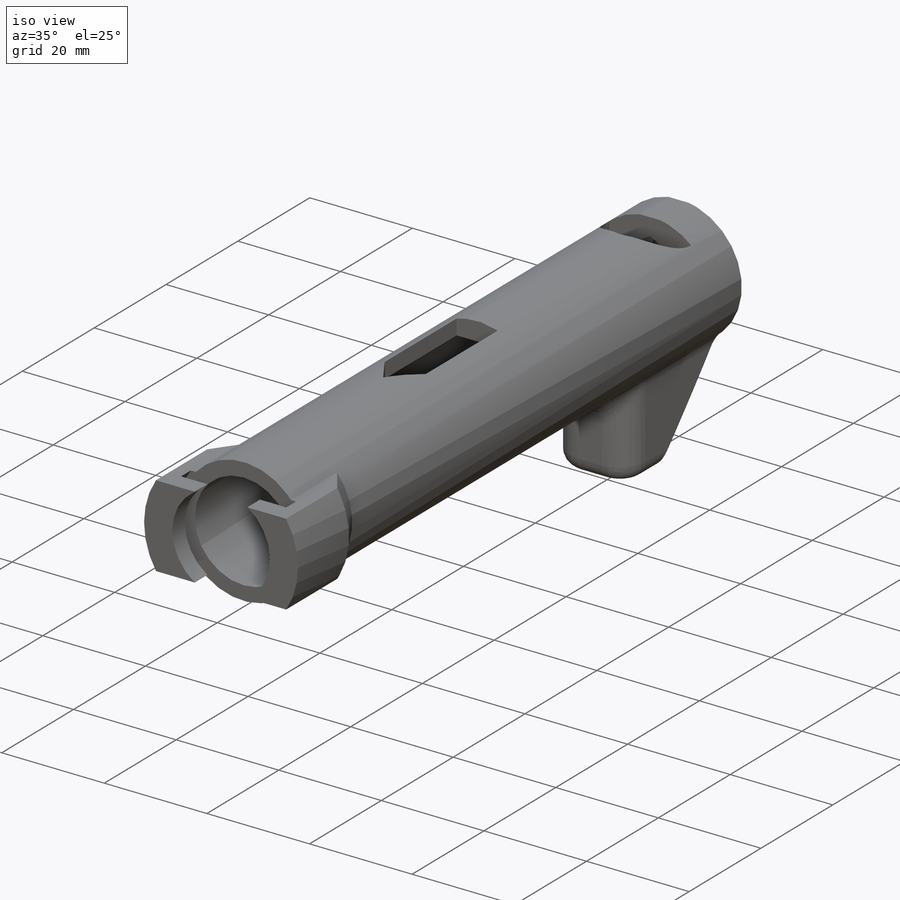
[diagram: iso view]
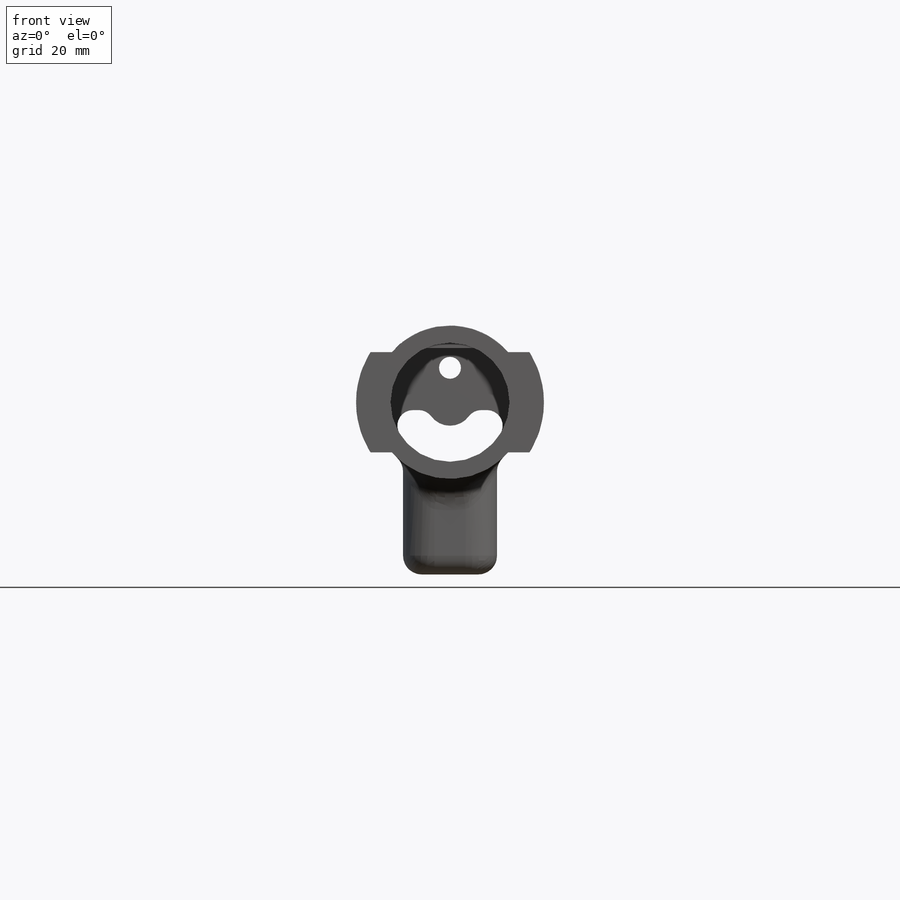
[diagram: front view]
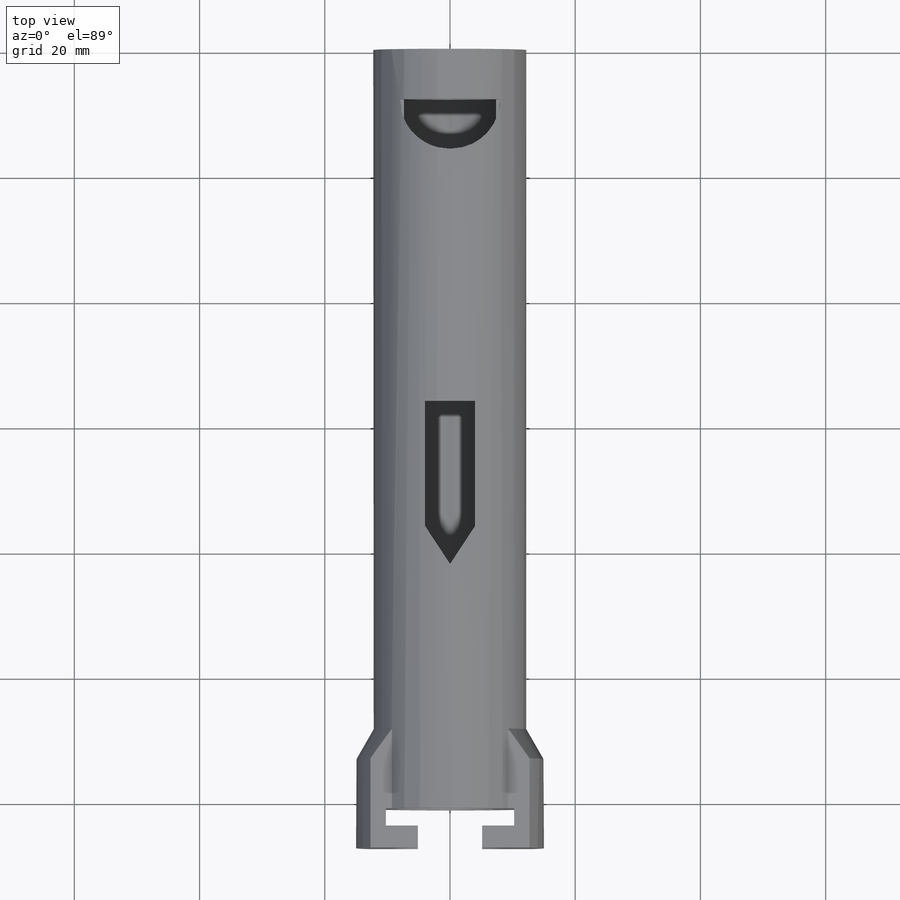
[diagram: top view]
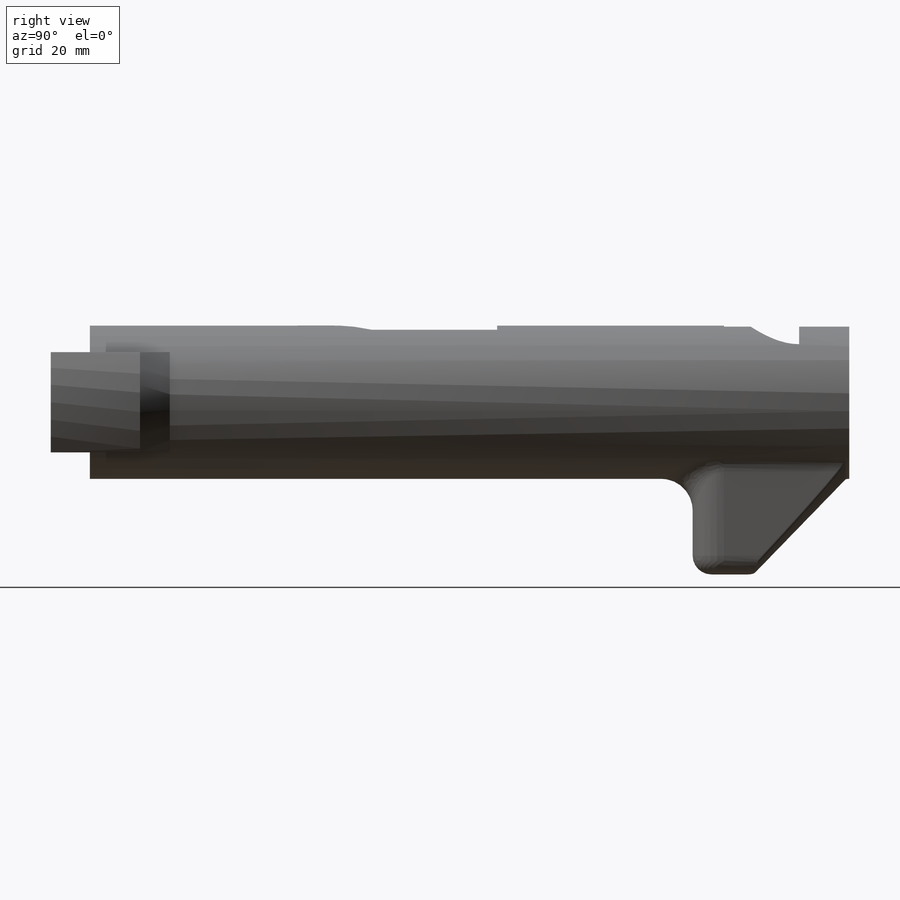
[diagram: right view]
SOLIDWORKS PART (.sldprt)
format: sldprt  version: not decoded by parser v0  size: 1,224,704 bytes
history: native  units: mm
features: sketch x48, cut_extrude x29, extrude x19, fillet x7, chamfer x3, material x1 (+13 scaffold rows collapsed)
feature tree (120):
  scaffold x13  (default folders/planes/origin — collapsed)
  material  "Material <not specified>"
  sketch  "Sketch1"  dims[D1=24.5mm]
  extrude  "Boss-Extrude1"  Depth=8mm
  sketch  "Sketch2"  dims[D2=3.5mm D1=5.5mm]
  cut_extrude  "Cut-Extrude1"  Depth=8mm
  sketch  "Sketch4"  dims[c1.D1=~4.964314mm c1.D4=~9.927938mm c1.D5=9.75mm c2.D1=17.5mm c2.D2=8.75mm c2.D3=10.0mm c2.D4=12.25mm]
  cut_extrude  "Cut-Extrude3"  Depth=10mm
  sketch  "Sketch5"
  cut_extrude  "Cut-Extrude4"  Depth=3mm
  fillet  "Fillet1"  Radius=2mm
  sketch  "Sketch6"  dims[D1=19.5mm]
  extrude  "Boss-Extrude2"  Depth=113.5mm
  sketch  "Sketch7"
  extrude  "Boss-Extrude4"  Depth=0.5mm
  sketch  "Sketch8"
  extrude  "Boss-Extrude5"  Depth=10mm
  sketch  "Sketch9"
  extrude  "Boss-Extrude6"  Depth=60mm
  sketch  "Sketch10"  dims[D1=8.0mm D2=4.0mm D3=20.0mm]
  cut_extrude  "Cut-Extrude6"  Depth=15mm
  sketch  "Sketch11"
  cut_extrude  "Cut-Extrude7"  Depth=56.5mm
  sketch  "Sketch12"
  cut_extrude  "Cut-Extrude8"  Depth=2mm
  sketch  "Sketch13"
  extrude  "Boss-Extrude7"  Depth=5mm
  sketch  "Sketch14"  dims[D1=8.0mm D2=4.0mm]
  cut_extrude  "Cut-Extrude9"  Depth=5mm
  sketch  "Sketch15"  dims[D1=~20.470246mm]
  cut_extrude  "Cut-Extrude10"  Depth=2mm
  sketch  "Sketch16"  dims[D1=20.47mm]
  cut_extrude  "Cut-Extrude11"  Depth=2mm
  sketch  "Sketch17"  dims[D1=~9.34367mm]
  extrude  "Boss-Extrude8"  Depth=121.5mm
  sketch  "Sketch18"
  extrude  "Boss-Extrude9"  Depth=1.5mm
  sketch  "Sketch19"
  cut_extrude  "Cut-Extrude12"  Depth=5mm
  sketch  "Sketch20"
  cut_extrude  "Cut-Extrude13"  Depth=5mm
  sketch  "Sketch21"  dims[D1=10.0mm]
  extrude  "Boss-Extrude10"  Depth=8mm
  sketch  "Sketch22"  dims[D1=1.5mm]
  cut_extrude  "Cut-Extrude17"  Depth=8mm
  fillet  "Fillet3"  Radius=2mm
  sketch  "Sketch23"  dims[D1=18.1mm]
  extrude  "Boss-Extrude11"  Depth=121.5mm
  sketch  "Sketch24"
  extrude  "Boss-Extrude12"  Depth=1.5mm
  sketch  "Sketch25"
  cut_extrude  "Cut-Extrude18"  Depth=5mm
  sketch  "Sketch26"  dims[D1=~9.396866mm]
  cut_extrude  "Cut-Extrude19"  Depth=113mm
  sketch  "Sketch27"
  extrude  "Boss-Extrude13"  Depth=3mm
  sketch  "Sketch30"
  cut_extrude  "Cut-Extrude20"  Depth=0.5mm
  sketch  "Sketch32"  dims[D1=45.0mm D2=15.0mm]
  extrude  "Boss-Extrude16"  Depth=25mm
  sketch  "Sketch33"
  cut_extrude  "Cut-Extrude21"  Depth=15mm
  sketch  "Sketch34"
  extrude  "Boss-Extrude17"  Depth=5mm
  chamfer  "Chamfer1"  Distance=15mm Angle=44deg
  fillet  "Fillet4"  Radius=3mm
  fillet  "Fillet5"  Radius=5mm
  fillet  "Fillet6"  Radius=0.5mm
  sketch  "Sketch35"
  cut_extrude  "Cut-Extrude22"  Depth=5mm
  sketch  "Sketch37"  dims[D1=~16.654116mm]
  extrude  "Boss-Extrude18"  Depth=5mm
  sketch  "Sketch38"  dims[D1=13.0mm D2=26.0mm D3=16.0mm D4=8.0mm D5=~17.768857mm]
  cut_extrude  "Cut-Extrude26"  Depth=5mm
  sketch  "Sketch40"
  extrude  "Boss-Extrude20"  Depth=8mm
  sketch  "Sketch41"  dims[D1=~12.617622mm]
  cut_extrude  "Cut-Extrude30"  Depth=2mm
  sketch  "Sketch42"  dims[D1=19.0mm D2=8.0mm D3=1.5mm]
  cut_extrude  "Cut-Extrude32"  Depth=8mm
  sketch  "Sketch43"  dims[D1=~9.422254mm]
  cut_extrude  "Cut-Extrude33"  Depth=113.5mm
  fillet  "Fillet7"  Radius=2.5mm
  sketch  "Sketch44"
  cut_extrude  "Cut-Extrude34"  Depth=10mm
  sketch  "Sketch45"  dims[D1=1.25mm]
  cut_extrude  "Cut-Extrude35"  Depth=10mm
  fillet  "Fillet8"  Radius=2.5mm
  sketch  "Sketch46"  dims[D1=~15.571337mm]
  extrude  "Boss-Extrude21"  Depth=1mm
  sketch  "Sketch47"  dims[D1=13.25mm]
  cut_extrude  "Cut-Extrude36"  Depth=2.5mm
  chamfer  "Chamfer2"  Distance=5mm Angle=30deg
  sketch  "Sketch50"
  cut_extrude  "Cut-Extrude37"  Depth=0.25mm
  sketch  "Sketch51"  dims[D5=~11.867936mm D1=13.0mm D2=13.0mm D3=2.0mm D4=2.0mm]
  extrude  "Boss-Extrude22"  Depth=20mm
  sketch  "Sketch53"  dims[D1=8.0mm D2=6.0mm D3=6.0mm D4=4.0mm]
  cut_extrude  "Cut-Extrude41"  Depth=7mm
  sketch  "Sketch54"
  cut_extrude  "Cut-Extrude43"  Depth=20mm
  sketch  "Sketch55"
  extrude  "Boss-Extrude23"  Depth=2mm
  chamfer  "Chamfer3"  Distance=2mm Angle=45deg
  sketch  "Sketch56"
  cut_extrude  "Cut-Extrude44"  Depth=4mm
  sketch  "Sketch60"  dims[D1=~3.250748mm]
  cut_extrude  "Cut-Extrude45"  Depth=3mm
decode coverage: 83 of 106 modeling features carry decoded parameters
note: ~ marks probable driven/reference dimensions
note: suppression state not decoded; provenance and decode notes live in map.json
